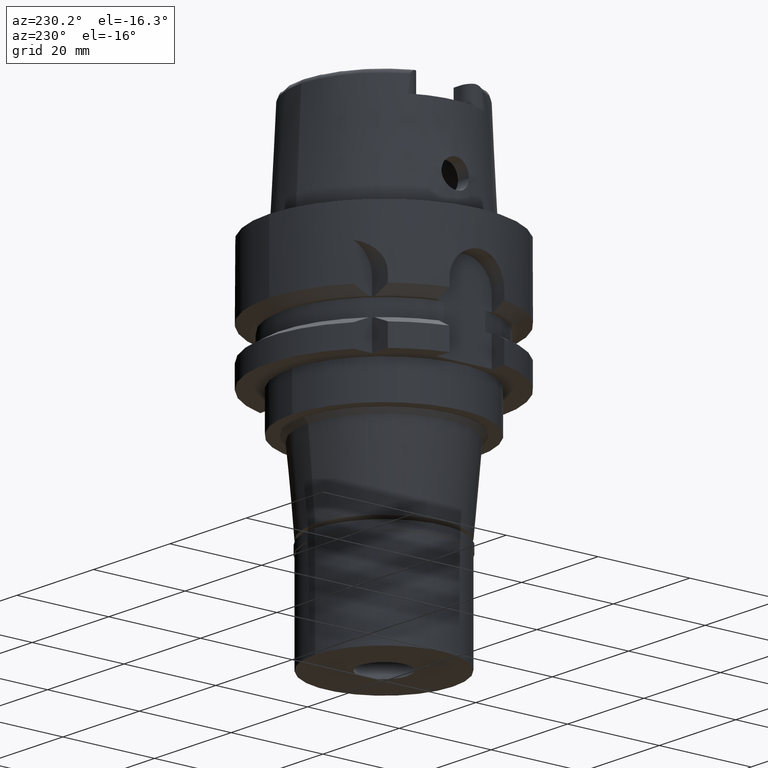
[diagram: clean part render]
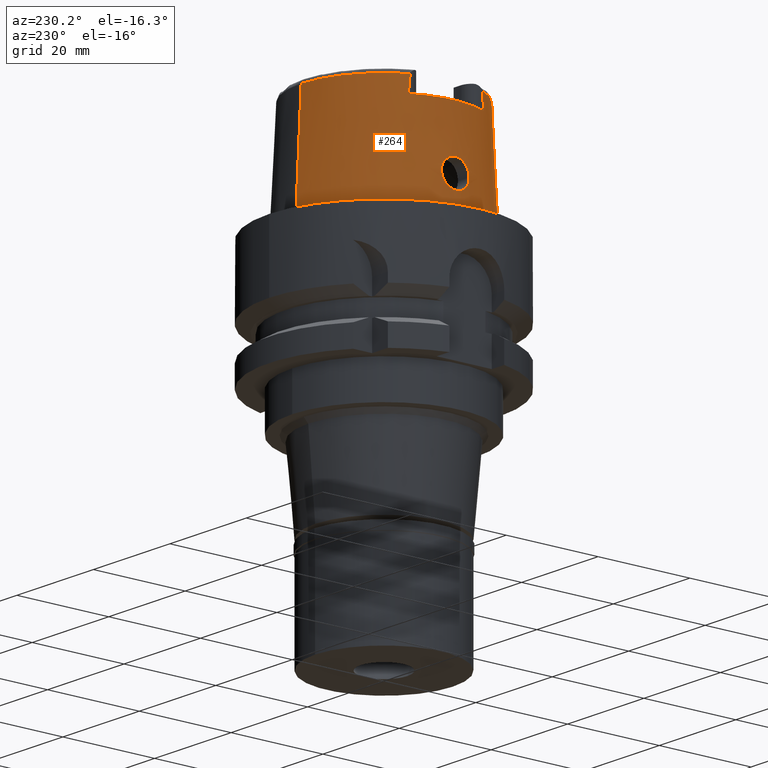
[diagram: same view with one face highlighted and labeled with its STEP entity id]
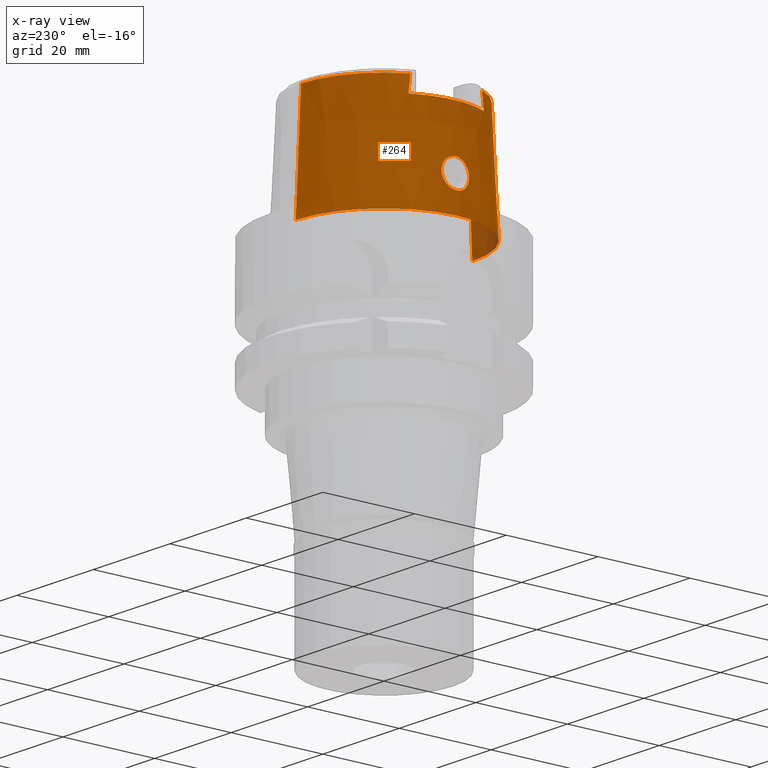
[diagram: x-ray of the same camera — body ghosted, the highlighted face saturated]
A machine part, auxiliary view. The second image highlights one B-rep face of the part: STEP entity #264.
The next image is the same camera in x-ray: the body ghosted, the highlighted face saturated — about 3% of this face is hidden behind the body in this view.
In plain terms, the highlighted conical surface has half-angle 2.862 deg.
Its self-contained STEP definition (entity closure, byte-faithful):
#10 = CARTESIAN_POINT ( 'NONE',  ( -19.02499995428000545, -0.1863717387759592503, 4.499999999999995559 ) ) ;
#13 = AXIS2_PLACEMENT_3D ( 'NONE', #879, #40, #4678 ) ;
#26 = CARTESIAN_POINT ( 'NONE',  ( -18.69444278380571589, 1.306621133543150126, 10.20230204858075496 ) ) ;
#39 = AXIS2_PLACEMENT_3D ( 'NONE', #3851, #1275, #2487 ) ;
#40 = DIRECTION ( 'NONE',  ( 0.0000000000000000000, 0.0000000000000000000, -1.000000000000000000 ) ) ;
#52 = CARTESIAN_POINT ( 'NONE',  ( -18.63254420033168302, 2.999662694504059868, 7.550856638169310742 ) ) ;
#109 = CARTESIAN_POINT ( 'NONE',  ( -18.79116365286348866, 2.505703896633280525, 5.850272712413715936 ) ) ;
#117 = ORIENTED_EDGE ( 'NONE', *, *, #4786, .T. ) ;
#130 = DIRECTION ( 'NONE',  ( -0.0008255998758101713419, -0.9999996591923644429, 0.0000000000000000000 ) ) ;
#140 = CARTESIAN_POINT ( 'NONE',  ( -18.94933811697155335, 1.467478060246842908, 4.881796981384058931 ) ) ;
#150 = CARTESIAN_POINT ( 'NONE',  ( -18.67349408149004475, -1.711068129019771566, 9.964652827048952943 ) ) ;
#168 = DIRECTION ( 'NONE',  ( 0.0000000000000000000, 0.04993752584486958745, -0.9987523434327917338 ) ) ;
#171 = CARTESIAN_POINT ( 'NONE',  ( -18.97588173148147206, 1.184278940534782887, 4.743625701498292990 ) ) ;
#180 = CARTESIAN_POINT ( 'NONE',  ( -18.61782507401535725, -2.631595726247760947, 8.953590160996220959 ) ) ;
#195 = ORIENTED_EDGE ( 'NONE', *, *, #2562, .F. ) ;
#201 = CARTESIAN_POINT ( 'NONE',  ( -18.74581924724137139, 2.705704740217513393, 6.200450255635248098 ) ) ;
#212 = ORIENTED_EDGE ( 'NONE', *, *, #2606, .F. ) ;
#234 = CARTESIAN_POINT ( 'NONE',  ( -18.62683055308962210, -2.473415264287133208, 9.200521107198918358 ) ) ;
#264 = ADVANCED_FACE ( 'NONE', ( #838, #5380 ), #3067, .T. ) ;
#267 = VERTEX_POINT ( 'NONE', #428 ) ;
#288 = CARTESIAN_POINT ( 'NONE',  ( -16.25999962739999916, -8.231834791749999880, 20.50000000000000000 ) ) ;
#375 = CARTESIAN_POINT ( 'NONE',  ( -18.61118138876417305, 2.906747813182755102, 8.267360866589770652 ) ) ;
#398 = AXIS2_PLACEMENT_3D ( 'NONE', #3683, #4441, #5371 ) ;
#401 = DIRECTION ( 'NONE',  ( 0.0000000000000000000, 0.0000000000000000000, -1.000000000000000000 ) ) ;
#404 = CARTESIAN_POINT ( 'NONE',  ( -18.62440443592063843, 2.990681400478792717, 7.741099575009626754 ) ) ;
#418 = CARTESIAN_POINT ( 'NONE',  ( -18.74745637421192157, -2.698146509452447717, 6.186832263764344475 ) ) ;
#428 = CARTESIAN_POINT ( 'NONE',  ( 0.0000000000000000000, -19.24999954279000036, -4.547473508865000658E-13 ) ) ;
#434 = CARTESIAN_POINT ( 'NONE',  ( -18.69808283884294653, 1.224585729721122007, 10.23990630222132125 ) ) ;
#471 = CARTESIAN_POINT ( 'NONE',  ( -18.89538946610411330, -1.902220355905569704, 5.179555926763380391 ) ) ;
#483 = CARTESIAN_POINT ( 'NONE',  ( -18.65648562136822619, 2.000009519420141935, 9.737008809813167076 ) ) ;
#497 = EDGE_LOOP ( 'NONE', ( #195, #117, #685, #1066, #2993, #5208, #1924, #3613 ) ) ;
#508 = CARTESIAN_POINT ( 'NONE',  ( -18.97336778263396440, 1.214075213159073519, 4.756490140291568913 ) ) ;
#537 = EDGE_CURVE ( 'NONE', #4729, #3943, #673, .T. ) ;
#565 = CARTESIAN_POINT ( 'NONE',  ( -18.88799430501260090, 1.966027803270640861, 5.222857145788587729 ) ) ;
#620 = B_SPLINE_CURVE_WITH_KNOTS ( 'NONE', 3,
 ( #2340, #4043, #3318, #4659, #4175, #5482 ),
 .UNSPECIFIED., .F., .F.,
 ( 4, 1, 1, 4 ),
 ( 0.0000000000000000000, 0.3333333333333000081, 0.6666666666667000474, 1.000000000000000000 ),
 .UNSPECIFIED. ) ;
#629 = CARTESIAN_POINT ( 'NONE',  ( -18.66412412357246353, -1.869856569164088045, 9.846496997703649612 ) ) ;
#651 = CARTESIAN_POINT ( 'NONE',  ( -18.64784935793285214, -2.134264458296743161, 9.608332506127510442 ) ) ;
#673 = LINE ( 'NONE', #1435, #3860 ) ;
#685 = ORIENTED_EDGE ( 'NONE', *, *, #537, .T. ) ;
#701 = AXIS2_PLACEMENT_3D ( 'NONE', #865, #401, #1663 ) ;
#741 = CARTESIAN_POINT ( 'NONE',  ( -19.02499995427999835, 7.118153172715999315E-14, 4.500000000000000000 ) ) ;
#774 = CARTESIAN_POINT ( 'NONE',  ( -18.86691185908198420, -2.091808839417674815, 5.349560712094725723 ) ) ;
#800 = VERTEX_POINT ( 'NONE', #3054 ) ;
#809 = CARTESIAN_POINT ( 'NONE',  ( -18.61681658470896750, 2.962906981639342963, 7.980300536546509171 ) ) ;
#825 = CARTESIAN_POINT ( 'NONE',  ( 0.0000000000000000000, 18.04750486565000145, 24.04993752584000077 ) ) ;
#829 = CARTESIAN_POINT ( 'NONE',  ( -18.87995039063731895, -2.007836159263492792, 5.270787893655708878 ) ) ;
#838 = FACE_OUTER_BOUND ( 'NONE', #497, .T. ) ;
#841 = CARTESIAN_POINT ( 'NONE',  ( -18.61848195080744617, 2.618534410907606969, 8.966876995507313097 ) ) ;
#865 = CARTESIAN_POINT ( 'NONE',  ( 0.0000000000000000000, 0.0000000000000000000, 12.02496876291999861 ) ) ;
#869 = CARTESIAN_POINT ( 'NONE',  ( -18.65614721998135650, 2.984406333693484736, 7.137344372789608649 ) ) ;
#879 = CARTESIAN_POINT ( 'NONE',  ( 0.0000000000000000000, 0.0000000000000000000, 24.04993752584000077 ) ) ;
#883 = CARTESIAN_POINT ( 'NONE',  ( -18.85221763492953784, -2.182749817017465066, 5.439577261371990602 ) ) ;
#948 = CARTESIAN_POINT ( 'NONE',  ( -19.02499995427999835, 7.118153172715999315E-14, 4.500000000000000000 ) ) ;
#1006 = CARTESIAN_POINT ( 'NONE',  ( -18.96147397444632432, 1.344976372135660458, 4.817993608434972153 ) ) ;
#1032 = CARTESIAN_POINT ( 'NONE',  ( -18.80399899719722256, 2.444277806357642913, 5.757805111364474371 ) ) ;
#1039 = CARTESIAN_POINT ( 'NONE',  ( -18.69717036615316275, -1.244721575229006172, 10.23005018655306664 ) ) ;
#1065 = CARTESIAN_POINT ( 'NONE',  ( -18.61213278906347313, -2.781558923635567560, 8.623819235733675370 ) ) ;
#1066 = ORIENTED_EDGE ( 'NONE', *, *, #3023, .T. ) ;
#1089 = EDGE_CURVE ( 'NONE', #800, #267, #2384, .T. ) ;
#1093 = CARTESIAN_POINT ( 'NONE',  ( -18.67107674284512697, -1.752413074472977783, 9.935458923055930924 ) ) ;
#1100 = CARTESIAN_POINT ( 'NONE',  ( 0.0000000000000000000, -18.04750486565000145, 24.04993752584000077 ) ) ;
#1182 = CARTESIAN_POINT ( 'NONE',  ( -18.88935711069147416, -1.944549598600609830, 5.214852851859671290 ) ) ;
#1222 = CARTESIAN_POINT ( 'NONE',  ( -18.71009887869995580, 0.9043307040705063082, 10.36090671361495197 ) ) ;
#1235 = CARTESIAN_POINT ( 'NONE',  ( -18.86426480720252741, -2.108307540755745890, 5.365737280675480392 ) ) ;
#1246 = CARTESIAN_POINT ( 'NONE',  ( -18.67136145880934350, 1.750855903332870778, 9.938074517514444040 ) ) ;
#1261 = CARTESIAN_POINT ( 'NONE',  ( -18.87515748387643910, -2.039427152640378438, 5.299502579292124871 ) ) ;
#1271 = CIRCLE ( 'NONE', #2777, 18.04750486564999434 ) ;
#1274 = CARTESIAN_POINT ( 'NONE',  ( -18.70181002438285489, 2.863970963131752701, 6.605424980111425981 ) ) ;
#1275 = DIRECTION ( 'NONE',  ( 0.0000000000000000000, 0.0000000000000000000, 1.000000000000000000 ) ) ;
#1287 = VERTEX_POINT ( 'NONE', #3134 ) ;
#1290 = CARTESIAN_POINT ( 'NONE',  ( -18.92340212155611567, -1.691084937307199221, 5.020112088498233760 ) ) ;
#1300 = CARTESIAN_POINT ( 'NONE',  ( -18.61321689961749115, 2.743767292098561850, 8.713495627158971857 ) ) ;
#1315 = CARTESIAN_POINT ( 'NONE',  ( -18.68477833114324937, -1.509465249250506735, 10.09445855005551884 ) ) ;
#1410 = CARTESIAN_POINT ( 'NONE',  ( -18.72480364292348298, 2.785006733670418733, 6.384750621903662271 ) ) ;
#1435 = CARTESIAN_POINT ( 'NONE',  ( 0.0000000000000000000, 18.04750486565000145, 24.04993752584000077 ) ) ;
#1437 = CARTESIAN_POINT ( 'NONE',  ( -18.83269794595590696, 2.291969234757045726, 5.563686161005215070 ) ) ;
#1444 = CARTESIAN_POINT ( 'NONE',  ( -18.65727663339002262, -1.983558341030875694, 9.752807871444026944 ) ) ;
#1497 = CARTESIAN_POINT ( 'NONE',  ( -18.61163173424411710, -2.804685893241827710, 8.565290382445329698 ) ) ;
#1544 = CARTESIAN_POINT ( 'NONE',  ( -18.72500050292000040, 0.0000000000000000000, 10.50000000000000000 ) ) ;
#1552 = EDGE_CURVE ( 'NONE', #3139, #1980, #4405, .T. ) ;
#1624 = B_SPLINE_CURVE_WITH_KNOTS ( 'NONE', 3,
 ( #2142, #4575, #2111, #2471, #5096, #4628 ),
 .UNSPECIFIED., .F., .F.,
 ( 4, 1, 1, 4 ),
 ( 0.0000000000000000000, 0.3333333333333000081, 0.6666666666667000474, 1.000000000000000000 ),
 .UNSPECIFIED. ) ;
#1638 = CARTESIAN_POINT ( 'NONE',  ( -18.70767736476419074, 0.9777757012461569808, 10.33702110091818582 ) ) ;
#1652 = CARTESIAN_POINT ( 'NONE',  ( -18.98293083432104922, -1.097154637868122951, 4.707773018097878293 ) ) ;
#1663 = DIRECTION ( 'NONE',  ( 0.0000000000000000000, -1.000000000000000000, 0.0000000000000000000 ) ) ;
#1664 = CARTESIAN_POINT ( 'NONE',  ( -18.61031644605866830, 2.850002767053477548, 8.458059885371456588 ) ) ;
#1688 = CARTESIAN_POINT ( 'NONE',  ( -18.67855100793668655, 1.621441363461073371, 10.02410924385200630 ) ) ;
#1704 = CARTESIAN_POINT ( 'NONE',  ( -18.98004373367762199, -1.133706729469490249, 4.722459146942364683 ) ) ;
#1714 = CARTESIAN_POINT ( 'NONE',  ( -18.67649840777863801, 1.658768133261694366, 9.999727965424508369 ) ) ;
#1729 = CARTESIAN_POINT ( 'NONE',  ( -18.64397880745537250, -2.195432439329763952, 9.544869848116489308 ) ) ;
#1740 = CARTESIAN_POINT ( 'NONE',  ( -18.67930597482952138, 2.930195257452143043, 6.849226751979418104 ) ) ;
#1792 = CARTESIAN_POINT ( 'NONE',  ( -18.97818491826060949, 1.156531480243881305, 4.731860230907436460 ) ) ;
#1820 = CARTESIAN_POINT ( 'NONE',  ( -18.73610418291526969, 2.743405807341936509, 6.283174572032640626 ) ) ;
#1828 = CARTESIAN_POINT ( 'NONE',  ( -18.65279574320724976, -2.056289586374326017, 9.686622997888671094 ) ) ;
#1853 = CARTESIAN_POINT ( 'NONE',  ( -18.66642764611798455, -1.831188989418479851, 9.876795875650479672 ) ) ;
#1878 = CARTESIAN_POINT ( 'NONE',  ( -18.97753102991718421, 1.164467357067795028, 4.735197718324417160 ) ) ;
#1884 = B_SPLINE_CURVE_WITH_KNOTS ( 'NONE', 3,
 ( #2917, #10, #5009, #2060, #4603, #3766, #5451, #3286, #1652, #2866, #3343, #1704, #5067, #4255, #1290, #5038, #471, #1182, #829, #1261, #4657, #774, #2973, #1235, #883, #2504, #2446, #2029, #4143, #4203, #2555, #418, #2948, #3734, #2085, #3794, #2528, #2298, #2271, #4840, #5247, #4485, #4704, #4026, #4864, #3612, #1912, #2352, #5275, #5298, #1497, #3135, #1065, #2325, #3972, #3427, #180, #234, #4000, #2746, #4457, #3186, #1729, #4397, #4892, #651, #1828, #1444, #629, #1853, #1093, #150, #5125, #1315, #3867, #5221, #1039, #3557, #3529, #2725, #4430 ),
 .UNSPECIFIED., .F., .F.,
 ( 4, 2, 2, 1, 1, 1, 2, 2, 2, 2, 2, 1, 1, 2, 2, 2, 2, 2, 1, 2, 2, 2, 2, 1, 2, 2, 2, 2, 1, 1, 1, 2, 2, 2, 2, 2, 1, 2, 2, 2, 2, 2, 2, 2, 2, 4 ),
 ( 0.0000000000000000000, 0.06250000000000151268, 0.09375000000000230371, 0.1093750000000026507, 0.1171875000000028172, 0.1210937500000029421, 0.1230468750000030531, 0.1250000000000031364, 0.1875000000000031919, 0.2187500000000031364, 0.2343750000000030809, 0.2421875000000029698, 0.2460937500000029698, 0.2480468750000028588, 0.2500000000000027756, 0.2812500000000028311, 0.3125000000000028311, 0.3437500000000028866, 0.3593750000000027200, 0.3671875000000026090, 0.3750000000000024980, 0.4375000000000015543, 0.4687500000000008882, 0.4843750000000004441, 0.4921875000000004441, 0.5000000000000003331, 0.5624999999999993339, 0.5937499999999990008, 0.6093749999999992228, 0.6171874999999995559, 0.6210937499999996669, 0.6230468749999995559, 0.6249999999999993339, 0.6875000000000035527, 0.7187500000000053291, 0.7343750000000062172, 0.7421875000000068834, 0.7460937500000069944, 0.7500000000000069944, 0.7812500000000058842, 0.7968750000000053291, 0.8125000000000046629, 0.8437500000000037748, 0.8593750000000033307, 0.8750000000000029976, 1.000000000000000000 ),
 .UNSPECIFIED. ) ;
#1912 = CARTESIAN_POINT ( 'NONE',  ( -18.61303610623040683, -2.925153289822855829, 8.173098367244941542 ) ) ;
#1921 = CARTESIAN_POINT ( 'NONE',  ( 0.0000000000000000000, 19.24999954279000036, -4.547473508865000658E-13 ) ) ;
#1924 = ORIENTED_EDGE ( 'NONE', *, *, #3468, .F. ) ;
#1978 = CIRCLE ( 'NONE', #39, 19.24999954279000036 ) ;
#1980 = VERTEX_POINT ( 'NONE', #741 ) ;
#2029 = CARTESIAN_POINT ( 'NONE',  ( -18.80597264379643718, -2.435470139448512761, 5.745634745392440124 ) ) ;
#2042 = CARTESIAN_POINT ( 'NONE',  ( -18.72500050292001106, 0.1815389271440785712, 10.49999999999999822 ) ) ;
#2055 = CIRCLE ( 'NONE', #398, 18.22500141733000589 ) ;
#2060 = CARTESIAN_POINT ( 'NONE',  ( -19.00989254455249977, -0.6635154579257690477, 4.572678202886949705 ) ) ;
#2072 = CARTESIAN_POINT ( 'NONE',  ( -18.61281738485488546, 2.756672172026412682, 8.683585815113117334 ) ) ;
#2085 = CARTESIAN_POINT ( 'NONE',  ( -18.73165997477199696, -2.759713321686144472, 6.323266678856529488 ) ) ;
#2097 = CARTESIAN_POINT ( 'NONE',  ( -18.68813521668147715, 1.437408589533530456, 10.13368189685686005 ) ) ;
#2111 = CARTESIAN_POINT ( 'NONE',  ( -16.26000002255999988, 7.966271241167000028, 22.87049542232000121 ) ) ;
#2142 = CARTESIAN_POINT ( 'NONE',  ( -16.26000040461999774, 7.831014550164000276, 24.04994510391000162 ) ) ;
#2155 = CARTESIAN_POINT ( 'NONE',  ( -18.61941794700497965, 2.976814471011775431, 7.884438008179934343 ) ) ;
#2180 = CARTESIAN_POINT ( 'NONE',  ( -18.84133732406139572, 2.243730581759306730, 5.507530643676890492 ) ) ;
#2237 = CARTESIAN_POINT ( 'NONE',  ( -18.78612549085294603, 2.529501604452322638, 5.886985501367467677 ) ) ;
#2263 = CARTESIAN_POINT ( 'NONE',  ( -18.78933116117169533, 2.514409614217483657, 5.863559218408338047 ) ) ;
#2271 = CARTESIAN_POINT ( 'NONE',  ( -18.65726762745474687, -2.978805363263520523, 7.131702611819668469 ) ) ;
#2298 = CARTESIAN_POINT ( 'NONE',  ( -18.66427907817422494, -2.965529357448661862, 7.035906075717945463 ) ) ;
#2325 = CARTESIAN_POINT ( 'NONE',  ( -18.61225064547226538, -2.776812552680739454, 8.635496264871154182 ) ) ;
#2340 = CARTESIAN_POINT ( 'NONE',  ( -16.25999962739999916, -8.231834791749999880, 20.50000000000000000 ) ) ;
#2352 = CARTESIAN_POINT ( 'NONE',  ( -18.61188427242617394, -2.901471329074440497, 8.268991016710014463 ) ) ;
#2374 = EDGE_CURVE ( 'NONE', #3053, #2383, #2055, .T. ) ;
#2383 = VERTEX_POINT ( 'NONE', #5310 ) ;
#2384 = LINE ( 'NONE', #1100, #4316 ) ;
#2446 = CARTESIAN_POINT ( 'NONE',  ( -18.81780650548657263, -2.375131815633523047, 5.664656031181682039 ) ) ;
#2456 = CARTESIAN_POINT ( 'NONE',  ( -18.62095515005430002, 2.570892707440523228, 9.049240267330857179 ) ) ;
#2471 = CARTESIAN_POINT ( 'NONE',  ( -16.25999931409999988, 8.099893749617999461, 21.68718078624999990 ) ) ;
#2486 = CARTESIAN_POINT ( 'NONE',  ( -18.61557662424948134, 2.682209431753036721, 8.844568781981422489 ) ) ;
#2487 = DIRECTION ( 'NONE',  ( 0.0000000000000000000, 1.000000000000000000, 0.0000000000000000000 ) ) ;
#2504 = CARTESIAN_POINT ( 'NONE',  ( -18.84080000300875568, -2.249381134453979580, 5.512533487709819546 ) ) ;
#2512 = CARTESIAN_POINT ( 'NONE',  ( -18.61432507904857303, 2.712101770506706977, 8.783720200940825507 ) ) ;
#2528 = CARTESIAN_POINT ( 'NONE',  ( -18.68776496794474795, -2.910133991985386803, 6.744943505111868021 ) ) ;
#2542 = CARTESIAN_POINT ( 'NONE',  ( -18.62998369241950769, 2.410739380939730836, 9.296350331518681287 ) ) ;
#2555 = CARTESIAN_POINT ( 'NONE',  ( -18.75558350479516179, -2.664318482953851319, 6.120196878098930426 ) ) ;
#2562 = EDGE_CURVE ( 'NONE', #1287, #2383, #1624, .T. ) ;
#2567 = CARTESIAN_POINT ( 'NONE',  ( -18.70286926257444549, 1.106233054716735609, 10.28864693192124058 ) ) ;
#2606 = EDGE_CURVE ( 'NONE', #1980, #3139, #1884, .T. ) ;
#2657 = CARTESIAN_POINT ( 'NONE',  ( -18.85867725433560693, 2.142250277667373748, 5.399781942548933067 ) ) ;
#2725 = CARTESIAN_POINT ( 'NONE',  ( -18.72500050292000395, -0.3637979385018590417, 10.49999999999999822 ) ) ;
#2746 = CARTESIAN_POINT ( 'NONE',  ( -18.63652154279038342, -2.314451385226382829, 9.409494088303468118 ) ) ;
#2777 = AXIS2_PLACEMENT_3D ( 'NONE', #4409, #4290, #130 ) ;
#2866 = CARTESIAN_POINT ( 'NONE',  ( -18.98154770965116711, -1.114779351783015127, 4.714805741578039999 ) ) ;
#2904 = CARTESIAN_POINT ( 'NONE',  ( -18.70452629214265983, 1.063438175000103403, 10.30540593042547037 ) ) ;
#2917 = CARTESIAN_POINT ( 'NONE',  ( -19.02499995427999835, 7.118153172715999315E-14, 4.500000000000000000 ) ) ;
#2930 = CARTESIAN_POINT ( 'NONE',  ( -18.65992166762323379, 1.944113887337615809, 9.785354924264064280 ) ) ;
#2948 = CARTESIAN_POINT ( 'NONE',  ( -18.73945542638313455, -2.729724470181150053, 6.255315289829045611 ) ) ;
#2957 = CARTESIAN_POINT ( 'NONE',  ( -18.70910209771045629, 2.840347739169283958, 6.531927003020434164 ) ) ;
#2973 = CARTESIAN_POINT ( 'NONE',  ( -18.86523960121684951, -2.102255498539708611, 5.359772168554939320 ) ) ;
#2983 = CARTESIAN_POINT ( 'NONE',  ( -18.64910187410765730, 2.114915691382066143, 9.627750644070887986 ) ) ;
#2993 = ORIENTED_EDGE ( 'NONE', *, *, #1089, .F. ) ;
#3007 = CARTESIAN_POINT ( 'NONE',  ( -18.72500050292000040, 0.0000000000000000000, 10.50000000000000000 ) ) ;
#3023 = EDGE_CURVE ( 'NONE', #3943, #267, #1978, .T. ) ;
#3053 = VERTEX_POINT ( 'NONE', #288 ) ;
#3054 = CARTESIAN_POINT ( 'NONE',  ( 0.0000000000000000000, -18.04750486565000145, 24.04993752584000077 ) ) ;
#3067 = CONICAL_SURFACE ( 'NONE', #701, 18.64875220421999913, 0.04995830450907576964 ) ;
#3093 = CARTESIAN_POINT ( 'NONE',  ( -18.72698259725358483, 2.777032920075449773, 6.365048340933229909 ) ) ;
#3127 = CARTESIAN_POINT ( 'NONE',  ( -18.85144546717684477, 2.185080259455117968, 5.444157273464690583 ) ) ;
#3134 = CARTESIAN_POINT ( 'NONE',  ( -16.26000040461999774, 7.831014550164000276, 24.04994510391000162 ) ) ;
#3135 = CARTESIAN_POINT ( 'NONE',  ( -18.61196454256879917, -2.788619931979857469, 8.606289506636500164 ) ) ;
#3139 = VERTEX_POINT ( 'NONE', #1544 ) ;
#3154 = CARTESIAN_POINT ( 'NONE',  ( -19.02499995428000190, 0.3746514729730885951, 4.500000000000007105 ) ) ;
#3186 = CARTESIAN_POINT ( 'NONE',  ( -18.64218694656783981, -2.223891530837273756, 9.513723306483694131 ) ) ;
#3220 = ORIENTED_EDGE ( 'NONE', *, *, #1552, .F. ) ;
#3286 = CARTESIAN_POINT ( 'NONE',  ( -18.98608067023591062, -1.055954342260933654, 4.691784466262755693 ) ) ;
#3318 = CARTESIAN_POINT ( 'NONE',  ( -16.25999997104000272, -8.099879603625000257, 21.68713993064000078 ) ) ;
#3343 = CARTESIAN_POINT ( 'NONE',  ( -18.98061824987301094, -1.126521635030700352, 4.719534379619816811 ) ) ;
#3357 = CARTESIAN_POINT ( 'NONE',  ( -18.63375551728095303, 2.999971391907838125, 7.525916094289049951 ) ) ;
#3384 = CARTESIAN_POINT ( 'NONE',  ( -18.68782683157388647, 2.907045185648555297, 6.752026160832209634 ) ) ;
#3409 = CARTESIAN_POINT ( 'NONE',  ( -18.65247290597431729, 2.063079097964312325, 9.678248390762533404 ) ) ;
#3427 = CARTESIAN_POINT ( 'NONE',  ( -18.61400784510469819, -2.711131010330553703, 8.794261905783473665 ) ) ;
#3435 = CARTESIAN_POINT ( 'NONE',  ( -18.68231392103234256, 1.551199904050965417, 10.06797419540100158 ) ) ;
#3468 = EDGE_CURVE ( 'NONE', #3053, #4246, #620, .T. ) ;
#3514 = CARTESIAN_POINT ( 'NONE',  ( -16.25999847872000004, -7.831027618096999987, 24.04990900411999988 ) ) ;
#3521 = CARTESIAN_POINT ( 'NONE',  ( -18.91100231874422022, 1.799091113669154529, 5.091184565906647030 ) ) ;
#3529 = CARTESIAN_POINT ( 'NONE',  ( -18.71701627098605414, -0.7599520513109616626, 10.43298752075060420 ) ) ;
#3557 = CARTESIAN_POINT ( 'NONE',  ( -18.69905174913464663, -1.200609655446677193, 10.24979054899259800 ) ) ;
#3612 = CARTESIAN_POINT ( 'NONE',  ( -18.61867736598174972, -2.981641155500284857, 7.884900953004838620 ) ) ;
#3613 = ORIENTED_EDGE ( 'NONE', *, *, #2374, .T. ) ;
#3667 = EDGE_CURVE ( 'NONE', #800, #4246, #1271, .T. ) ;
#3683 = CARTESIAN_POINT ( 'NONE',  ( 0.0000000000000000000, 0.0000000000000000000, 20.50000000000000000 ) ) ;
#3734 = CARTESIAN_POINT ( 'NONE',  ( -18.73414950177603089, -2.750259139039112899, 6.301371459137170561 ) ) ;
#3747 = CARTESIAN_POINT ( 'NONE',  ( -18.71456936596596421, 0.7576758110030762383, 10.40453651220773779 ) ) ;
#3766 = CARTESIAN_POINT ( 'NONE',  ( -18.99667356104094296, -0.9020090489506923381, 4.638383846382285292 ) ) ;
#3778 = CARTESIAN_POINT ( 'NONE',  ( -18.62716879174637441, 2.995867384192600458, 7.669543368057552435 ) ) ;
#3794 = CARTESIAN_POINT ( 'NONE',  ( -18.70669094460786752, -2.852376481441225575, 6.546081903450226669 ) ) ;
#3825 = CARTESIAN_POINT ( 'NONE',  ( -18.70214164420432823, 1.124562613034739256, 10.28125914290536613 ) ) ;
#3850 = CARTESIAN_POINT ( 'NONE',  ( -18.68589144687866010, 1.482285421247352408, 10.10876989637839785 ) ) ;
#3851 = CARTESIAN_POINT ( 'NONE',  ( 0.0000000000000000000, 0.0000000000000000000, -4.547473508865000658E-13 ) ) ;
#3860 = VECTOR ( 'NONE', #168, 999.9999999999998863 ) ;
#3867 = CARTESIAN_POINT ( 'NONE',  ( -18.69109305366618301, -1.379399405772117726, 10.16452292277966585 ) ) ;
#3876 = CARTESIAN_POINT ( 'NONE',  ( -18.85992151550577844, 2.134818759121343223, 5.392217587759366104 ) ) ;
#3935 = CARTESIAN_POINT ( 'NONE',  ( -18.76208690752082830, 2.637529628437230489, 6.069666339994657989 ) ) ;
#3943 = VERTEX_POINT ( 'NONE', #1921 ) ;
#3966 = CARTESIAN_POINT ( 'NONE',  ( -18.77677333361392797, 2.572630833142406370, 5.956539389520288275 ) ) ;
#3972 = CARTESIAN_POINT ( 'NONE',  ( -18.61232607734003963, -2.773910023108353773, 8.642562004840867118 ) ) ;
#4000 = CARTESIAN_POINT ( 'NONE',  ( -18.63037898539910131, -2.414209528652139003, 9.284097503819264574 ) ) ;
#4026 = CARTESIAN_POINT ( 'NONE',  ( -18.63614077009718883, -3.000018066726831023, 7.478694371403301844 ) ) ;
#4043 = CARTESIAN_POINT ( 'NONE',  ( -16.25999962739999916, -8.187990026059001281, 20.89607519730999741 ) ) ;
#4143 = CARTESIAN_POINT ( 'NONE',  ( -18.78317867109044670, -2.543182901454902556, 5.905781390001035192 ) ) ;
#4154 = CARTESIAN_POINT ( 'NONE',  ( -18.66678919468971642, 1.830010130735698626, 9.879236572641010738 ) ) ;
#4175 = CARTESIAN_POINT ( 'NONE',  ( -16.25999847872000004, -7.876284608195000203, 23.65715737242999950 ) ) ;
#4186 = CARTESIAN_POINT ( 'NONE',  ( -18.61247003993701910, 2.768580712100688679, 8.655473336629986747 ) ) ;
#4203 = CARTESIAN_POINT ( 'NONE',  ( -18.77200600963425003, -2.593870456712268791, 5.989491943396177298 ) ) ;
#4213 = CARTESIAN_POINT ( 'NONE',  ( -18.64391313726241961, 3.000209902200317025, 7.324670880648709748 ) ) ;
#4246 = VERTEX_POINT ( 'NONE', #3514 ) ;
#4255 = CARTESIAN_POINT ( 'NONE',  ( -18.95243251532798467, -1.442797455216166203, 4.862428242033728587 ) ) ;
#4270 = CARTESIAN_POINT ( 'NONE',  ( -18.70135009575073681, 1.144267278943255306, 10.27320726840541809 ) ) ;
#4290 = DIRECTION ( 'NONE',  ( 0.0000000000000000000, 0.0000000000000000000, -1.000000000000000000 ) ) ;
#4298 = CARTESIAN_POINT ( 'NONE',  ( -18.96722189363222100, 1.284125539225417834, 4.788092424230977251 ) ) ;
#4316 = VECTOR ( 'NONE', #4596, 999.9999999999998863 ) ;
#4328 = CARTESIAN_POINT ( 'NONE',  ( -18.81545218249813800, 2.385618362130512704, 5.678307914358795117 ) ) ;
#4362 = CARTESIAN_POINT ( 'NONE',  ( -18.85578371465327407, 2.159447715980371552, 5.417468438905036265 ) ) ;
#4367 = CIRCLE ( 'NONE', #13, 18.04750486565000145 ) ;
#4391 = CARTESIAN_POINT ( 'NONE',  ( -18.72615670706782964, 2.780065762846364308, 6.372490338762759166 ) ) ;
#4397 = CARTESIAN_POINT ( 'NONE',  ( -18.64584753480481893, -2.165874728524691761, 9.575859450426014163 ) ) ;
#4405 = B_SPLINE_CURVE_WITH_KNOTS ( 'NONE', 3,
 ( #3007, #2042, #5437, #4639, #3747, #1222, #1638, #2904, #2567, #3825, #5490, #4270, #434, #26, #2097, #3850, #3435, #4716, #1688, #5078, #1714, #1246, #4154, #2930, #483, #3409, #5049, #4612, #2983, #5107, #2542, #2456, #841, #2486, #2512, #1300, #2072, #4690, #4186, #1664, #375, #809, #2155, #404, #3778, #5466, #52, #3357, #4213, #869, #1740, #3384, #1274, #2957, #4667, #5132, #1410, #4391, #3093, #1820, #201, #3935, #4804, #3966, #4423, #2237, #2263, #109, #1032, #4328, #1437, #2180, #3127, #4362, #2657, #3876, #565, #3521, #5241, #140, #1006, #4298, #508, #171, #1878, #1792, #5214, #3154, #948 ),
 .UNSPECIFIED., .F., .F.,
 ( 4, 2, 2, 1, 1, 1, 2, 2, 2, 2, 1, 2, 2, 2, 1, 1, 2, 2, 2, 2, 1, 1, 2, 2, 2, 2, 1, 2, 2, 2, 2, 1, 1, 1, 2, 2, 2, 2, 1, 2, 2, 2, 1, 1, 2, 2, 2, 2, 1, 1, 2, 2, 4 ),
 ( 0.0000000000000000000, 0.06250000000000212330, 0.09375000000000320577, 0.1093750000000037748, 0.1171875000000040662, 0.1210937500000042882, 0.1230468750000043576, 0.1250000000000044131, 0.1562500000000062728, 0.1718750000000073552, 0.1796875000000078548, 0.1835937500000079659, 0.1875000000000080769, 0.2187500000000090761, 0.2343750000000094369, 0.2421875000000097700, 0.2460937500000099087, 0.2500000000000100475, 0.3125000000000138778, 0.3437500000000155431, 0.3593750000000163758, 0.3671875000000168199, 0.3710937500000167644, 0.3750000000000167644, 0.4375000000000138778, 0.4687500000000121569, 0.4843750000000113798, 0.4921875000000111577, 0.5000000000000108802, 0.5625000000000096589, 0.5937500000000088818, 0.6093750000000084377, 0.6171875000000083267, 0.6210937500000081046, 0.6230468750000079936, 0.6250000000000077716, 0.6562500000000064393, 0.6718750000000059952, 0.6796875000000057732, 0.6835937500000056621, 0.6875000000000055511, 0.7187500000000032196, 0.7343750000000021094, 0.7421875000000015543, 0.7460937500000013323, 0.7500000000000011102, 0.8125000000000004441, 0.8437500000000002220, 0.8593750000000001110, 0.8671875000000000000, 0.8710937500000000000, 0.8749999999999998890, 1.000000000000000000 ),
 .UNSPECIFIED. ) ;
#4409 = CARTESIAN_POINT ( 'NONE',  ( 0.0000000000000000000, 0.0000000000000000000, 24.04993752584000077 ) ) ;
#4423 = CARTESIAN_POINT ( 'NONE',  ( -18.78136995611826165, 2.551704126634453118, 5.921986728237305542 ) ) ;
#4430 = CARTESIAN_POINT ( 'NONE',  ( -18.72500050292000040, 0.0000000000000000000, 10.50000000000000000 ) ) ;
#4441 = DIRECTION ( 'NONE',  ( 0.0000000000000000000, 0.0000000000000000000, -1.000000000000000000 ) ) ;
#4457 = CARTESIAN_POINT ( 'NONE',  ( -18.63870571340865467, -2.279375332475147342, 9.451294052090876363 ) ) ;
#4485 = CARTESIAN_POINT ( 'NONE',  ( -18.63975736061366462, -2.998782478721238043, 7.411544811980300018 ) ) ;
#4575 = CARTESIAN_POINT ( 'NONE',  ( -16.26000040461999774, 7.876275909944000730, 23.65715615274000072 ) ) ;
#4596 = DIRECTION ( 'NONE',  ( 0.0000000000000000000, -0.04993752584486958745, -0.9987523434327917338 ) ) ;
#4603 = CARTESIAN_POINT ( 'NONE',  ( -19.00517147901265602, -0.7591633687104251127, 4.595944160359972663 ) ) ;
#4612 = CARTESIAN_POINT ( 'NONE',  ( -18.64960506376501925, 2.107237397729261552, 9.635345913584258071 ) ) ;
#4628 = CARTESIAN_POINT ( 'NONE',  ( -16.26000000000000156, 8.231833128876001382, 20.50000000000000000 ) ) ;
#4639 = CARTESIAN_POINT ( 'NONE',  ( -18.71705297000264068, 0.6602257645272127107, 10.42809783136291912 ) ) ;
#4657 = CARTESIAN_POINT ( 'NONE',  ( -18.86940905253794654, -2.076123621263803010, 5.334340550277430815 ) ) ;
#4659 = CARTESIAN_POINT ( 'NONE',  ( -16.26000066025000024, -7.966258492953999237, 22.87044371988000080 ) ) ;
#4667 = CARTESIAN_POINT ( 'NONE',  ( -18.71813535120809746, 2.808991883812610002, 6.446068522104414278 ) ) ;
#4678 = DIRECTION ( 'NONE',  ( -0.9009556354130529021, 0.4339112155930774928, 0.0000000000000000000 ) ) ;
#4690 = CARTESIAN_POINT ( 'NONE',  ( -18.61256780151964563, 2.765129814353704418, 8.663689802109667326 ) ) ;
#4704 = CARTESIAN_POINT ( 'NONE',  ( -18.63727310925895608, -2.999781043392356406, 7.457170492917247984 ) ) ;
#4716 = CARTESIAN_POINT ( 'NONE',  ( -18.68047219032365902, 1.586056035418208277, 10.04671932015213542 ) ) ;
#4729 = VERTEX_POINT ( 'NONE', #825 ) ;
#4786 = EDGE_CURVE ( 'NONE', #1287, #4729, #4367, .T. ) ;
#4804 = CARTESIAN_POINT ( 'NONE',  ( -18.76779197157903667, 2.612865243537660032, 6.024962557064233337 ) ) ;
#4840 = CARTESIAN_POINT ( 'NONE',  ( -18.64797622018156176, -2.991758175117777085, 7.272812607737717094 ) ) ;
#4864 = CARTESIAN_POINT ( 'NONE',  ( -18.62535255026757497, -2.999846769408879066, 7.692115881419104184 ) ) ;
#4892 = CARTESIAN_POINT ( 'NONE',  ( -18.64711043447375971, -2.145923102115538939, 9.596477960149288222 ) ) ;
#5009 = CARTESIAN_POINT ( 'NONE',  ( -19.02122310184812548, -0.3769193521999480434, 4.517418153851319396 ) ) ;
#5038 = CARTESIAN_POINT ( 'NONE',  ( -18.91277015847162701, -1.775396648593712490, 5.079343341585985883 ) ) ;
#5049 = CARTESIAN_POINT ( 'NONE',  ( -18.65075231478482465, 2.089637710521258462, 9.652571917455318840 ) ) ;
#5067 = CARTESIAN_POINT ( 'NONE',  ( -18.96796545053379290, -1.283716602621725267, 4.783975356323503902 ) ) ;
#5078 = CARTESIAN_POINT ( 'NONE',  ( -18.67725256375019782, 1.645140865340761538, 10.00872698857956777 ) ) ;
#5096 = CARTESIAN_POINT ( 'NONE',  ( -16.26000158539999774, 8.187979356550998844, 20.89609208375999927 ) ) ;
#5107 = CARTESIAN_POINT ( 'NONE',  ( -18.63814798016250407, 2.280863652930936514, 9.461276206011898893 ) ) ;
#5125 = CARTESIAN_POINT ( 'NONE',  ( -18.68037858809922014, -1.592436934108847346, 10.04425144413763427 ) ) ;
#5132 = CARTESIAN_POINT ( 'NONE',  ( -18.72278343661078281, 2.792348347262630259, 6.403143034044061821 ) ) ;
#5208 = ORIENTED_EDGE ( 'NONE', *, *, #3667, .T. ) ;
#5214 = CARTESIAN_POINT ( 'NONE',  ( -19.00971341190632558, 0.7672779415367979583, 4.571171071570563349 ) ) ;
#5221 = CARTESIAN_POINT ( 'NONE',  ( -18.69315047916662564, -1.335110840878379390, 10.18700295189790062 ) ) ;
#5241 = CARTESIAN_POINT ( 'NONE',  ( -18.94039418651771456, 1.550223580942965418, 4.929671809517159886 ) ) ;
#5247 = CARTESIAN_POINT ( 'NONE',  ( -18.64363695874648741, -2.996495092330064391, 7.342724136366943100 ) ) ;
#5275 = CARTESIAN_POINT ( 'NONE',  ( -18.61124940088919999, -2.858515195603715142, 8.411790349152743929 ) ) ;
#5298 = CARTESIAN_POINT ( 'NONE',  ( -18.61120518491303955, -2.835180064766717134, 8.482929330516331135 ) ) ;
#5310 = CARTESIAN_POINT ( 'NONE',  ( -16.26000000000000156, 8.231833128876001382, 20.50000000000000000 ) ) ;
#5369 = EDGE_LOOP ( 'NONE', ( #3220, #212 ) ) ;
#5371 = DIRECTION ( 'NONE',  ( -0.8921810005753487705, -0.4516780515061248891, 0.0000000000000000000 ) ) ;
#5380 = FACE_BOUND ( 'NONE', #5369, .T. ) ;
#5437 = CARTESIAN_POINT ( 'NONE',  ( -18.72301361969066846, 0.3706975056958774495, 10.48348843469886660 ) ) ;
#5451 = CARTESIAN_POINT ( 'NONE',  ( -18.99207052213959201, -0.9732742010261870025, 4.661487647631678222 ) ) ;
#5466 = CARTESIAN_POINT ( 'NONE',  ( -18.63033981462397648, 2.998483449852695770, 7.598283668046677874 ) ) ;
#5482 = CARTESIAN_POINT ( 'NONE',  ( -16.25999847872000004, -7.831027618096999987, 24.04990900411999988 ) ) ;
#5490 = CARTESIAN_POINT ( 'NONE',  ( -18.70165268465960651, 1.136779477705025743, 10.27628815321805433 ) ) ;